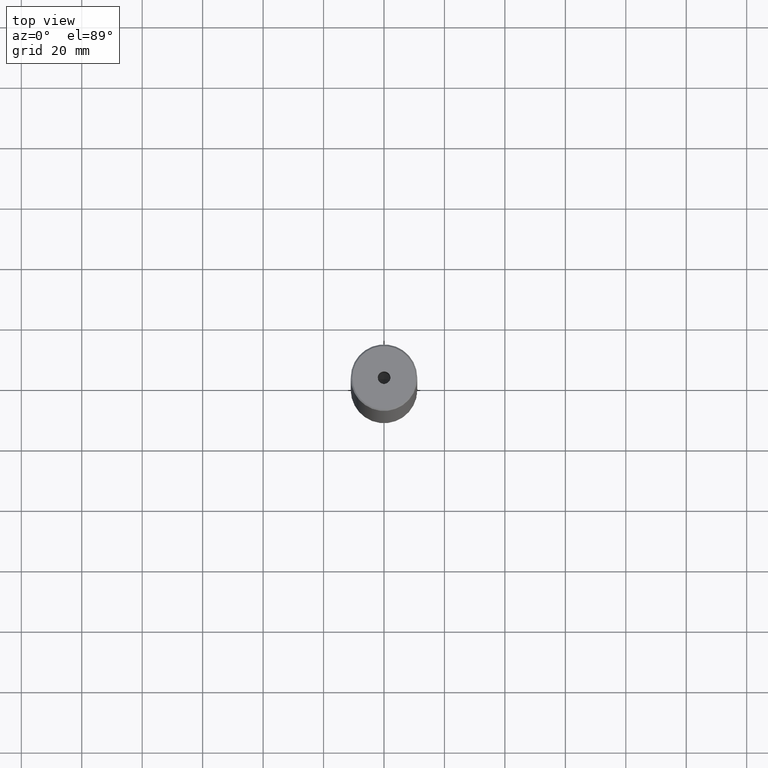
[diagram: clean part render]
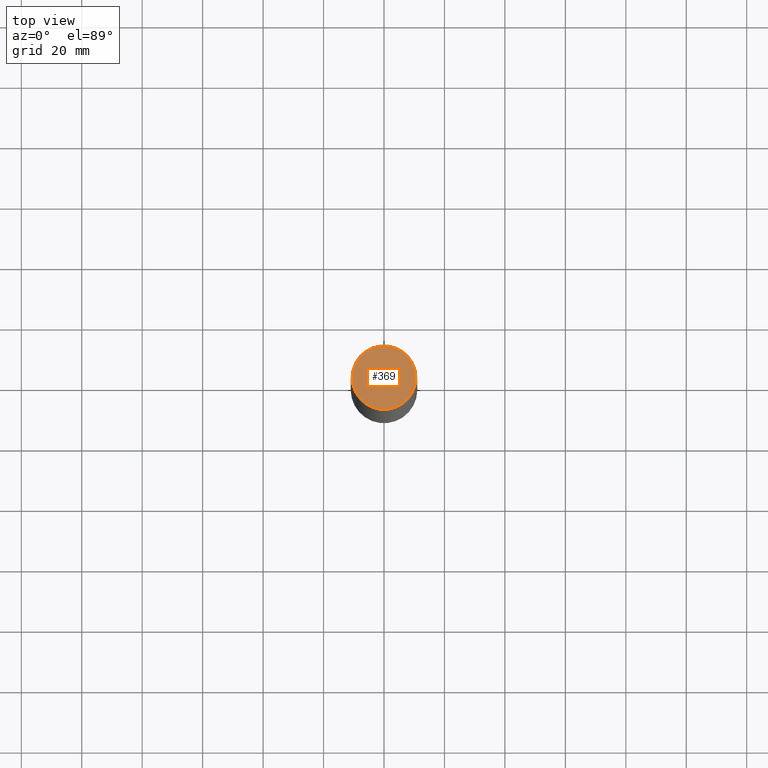
[diagram: same view with one face highlighted and labeled with its STEP entity id]
A machine part, top view. The second image highlights one B-rep face of the part: STEP entity #369.
In plain terms, the highlighted planar face has unit normal (0, -0, 1).
Its self-contained STEP definition (entity closure, byte-faithful):
#7 = EDGE_CURVE ( 'NONE', #320, #543, #432, .T. ) ;
#39 = EDGE_LOOP ( 'NONE', ( #55, #88 ) ) ;
#43 = CARTESIAN_POINT ( 'NONE',  ( 0.000000000000000000, 0.000000000000000000, 0.000000000000000000 ) ) ;
#55 = ORIENTED_EDGE ( 'NONE', *, *, #469, .F. ) ;
#82 = ORIENTED_EDGE ( 'NONE', *, *, #478, .T. ) ;
#88 = ORIENTED_EDGE ( 'NONE', *, *, #294, .F. ) ;
#98 = CIRCLE ( 'NONE', #444, 2.099999999999998757 ) ;
#109 = CARTESIAN_POINT ( 'NONE',  ( -10.49999999999998224, 0.000000000000000000, 0.000000000000000000 ) ) ;
#125 = CARTESIAN_POINT ( 'NONE',  ( 0.000000000000000000, 0.000000000000000000, 0.000000000000000000 ) ) ;
#171 = VERTEX_POINT ( 'NONE', #247 ) ;
#186 = DIRECTION ( 'NONE',  ( 0.000000000000000000, -0.000000000000000000, 1.000000000000000000 ) ) ;
#217 = AXIS2_PLACEMENT_3D ( 'NONE', #223, #584, #358 ) ;
#220 = ORIENTED_EDGE ( 'NONE', *, *, #7, .T. ) ;
#223 = CARTESIAN_POINT ( 'NONE',  ( 0.000000000000000000, 0.000000000000000000, -1.990051048614449116E-16 ) ) ;
#229 = CARTESIAN_POINT ( 'NONE',  ( 2.099999999999998757, 0.000000000000000000, -1.990051048614449116E-16 ) ) ;
#230 = CARTESIAN_POINT ( 'NONE',  ( 0.000000000000000000, 0.000000000000000000, 0.000000000000000000 ) ) ;
#231 = AXIS2_PLACEMENT_3D ( 'NONE', #43, #412, #458 ) ;
#247 = CARTESIAN_POINT ( 'NONE',  ( -2.099999999999998757, 2.571758278209440478E-16, -1.990051048614449116E-16 ) ) ;
#256 = CARTESIAN_POINT ( 'NONE',  ( 10.49999999999998224, 1.316495309083403434E-15, 0.000000000000000000 ) ) ;
#265 = DIRECTION ( 'NONE',  ( -0.000000000000000000, -0.000000000000000000, 1.000000000000000000 ) ) ;
#285 = CIRCLE ( 'NONE', #408, 10.49999999999998224 ) ;
#294 = EDGE_CURVE ( 'NONE', #171, #459, #98, .T. ) ;
#306 = FACE_OUTER_BOUND ( 'NONE', #335, .T. ) ;
#310 = DIRECTION ( 'NONE',  ( 1.000000000000000000, 0.000000000000000000, 0.000000000000000000 ) ) ;
#315 = DIRECTION ( 'NONE',  ( 1.000000000000000000, 0.000000000000000000, 0.000000000000000000 ) ) ;
#319 = DIRECTION ( 'NONE',  ( 1.000000000000000000, 0.000000000000000000, 0.000000000000000000 ) ) ;
#320 = VERTEX_POINT ( 'NONE', #109 ) ;
#331 = CIRCLE ( 'NONE', #217, 2.099999999999998757 ) ;
#335 = EDGE_LOOP ( 'NONE', ( #220, #82 ) ) ;
#358 = DIRECTION ( 'NONE',  ( 1.000000000000000000, 0.000000000000000000, 0.000000000000000000 ) ) ;
#368 = AXIS2_PLACEMENT_3D ( 'NONE', #125, #186, #315 ) ;
#369 = ADVANCED_FACE ( 'NONE', ( #540, #306 ), #457, .T. ) ;
#408 = AXIS2_PLACEMENT_3D ( 'NONE', #230, #546, #319 ) ;
#412 = DIRECTION ( 'NONE',  ( -0.000000000000000000, -0.000000000000000000, 1.000000000000000000 ) ) ;
#432 = CIRCLE ( 'NONE', #231, 10.49999999999998224 ) ;
#444 = AXIS2_PLACEMENT_3D ( 'NONE', #489, #265, #310 ) ;
#457 = PLANE ( 'NONE',  #368 ) ;
#458 = DIRECTION ( 'NONE',  ( 1.000000000000000000, 0.000000000000000000, 0.000000000000000000 ) ) ;
#459 = VERTEX_POINT ( 'NONE', #229 ) ;
#469 = EDGE_CURVE ( 'NONE', #459, #171, #331, .T. ) ;
#478 = EDGE_CURVE ( 'NONE', #543, #320, #285, .T. ) ;
#489 = CARTESIAN_POINT ( 'NONE',  ( 0.000000000000000000, 0.000000000000000000, -1.990051048614449116E-16 ) ) ;
#540 = FACE_BOUND ( 'NONE', #39, .T. ) ;
#543 = VERTEX_POINT ( 'NONE', #256 ) ;
#546 = DIRECTION ( 'NONE',  ( -0.000000000000000000, -0.000000000000000000, 1.000000000000000000 ) ) ;
#584 = DIRECTION ( 'NONE',  ( -0.000000000000000000, -0.000000000000000000, 1.000000000000000000 ) ) ;